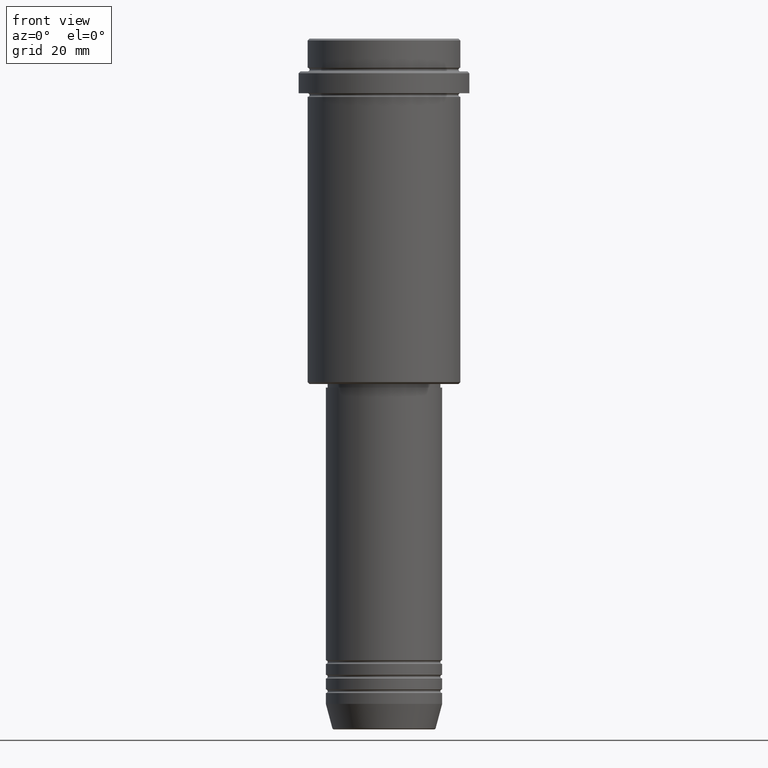
[diagram: clean part render]
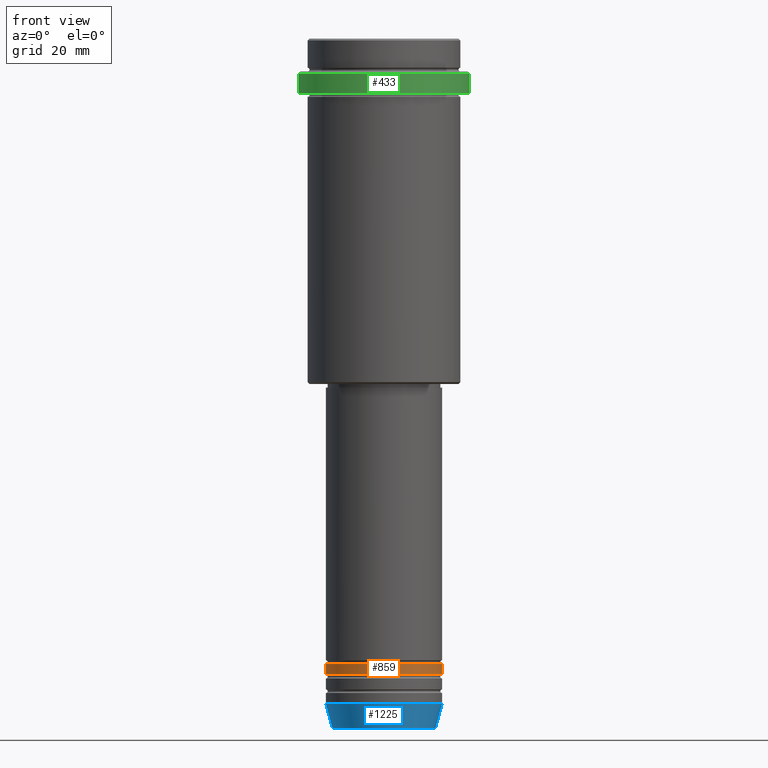
[diagram: same view with three faces highlighted in distinct colors, each labeled with its STEP entity id]
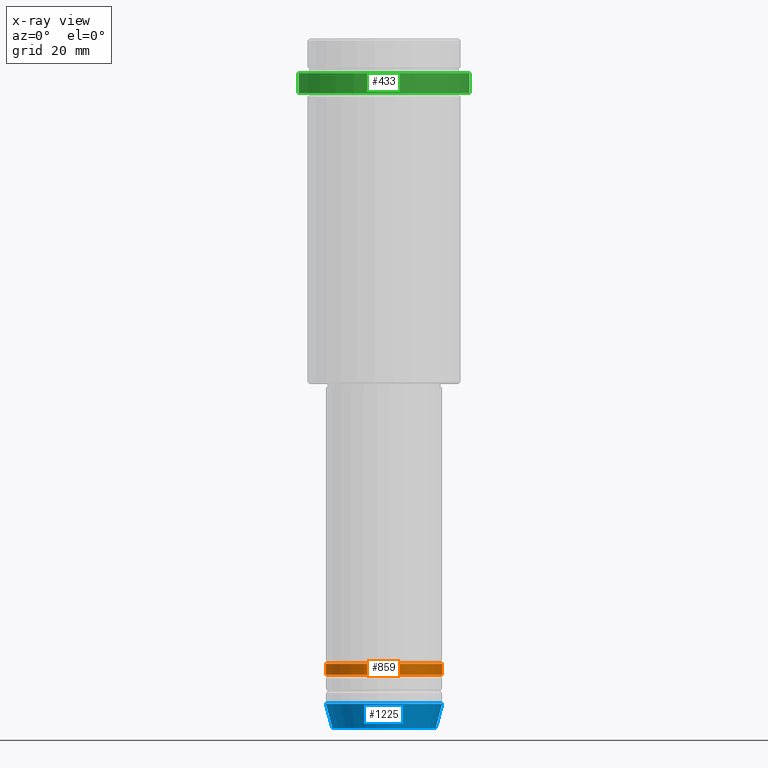
[diagram: x-ray of the same camera — body ghosted, the three highlighted faces saturated]
A machine part, front view with three faces highlighted in distinct colors.
The next image is the same camera in x-ray (body ghosted, the three faces saturated) — at least one of them is partly hidden behind the body in this view.
Their STEP definitions:

[orange] entity #859 — the highlighted cylindrical surface (partial cylindrical patch) has radius 16 mm, axis along (-0, -0, 1).
#38 = EDGE_CURVE ( 'NONE', #75, #716, #1025, .T. ) ;
#53 = DIRECTION ( 'NONE',  ( -0.000000000000000000, -0.000000000000000000, 1.000000000000000000 ) ) ;
#62 = DIRECTION ( 'NONE',  ( 1.000000000000000000, 0.000000000000000000, 0.000000000000000000 ) ) ;
#67 = DIRECTION ( 'NONE',  ( -0.000000000000000000, -0.000000000000000000, 1.000000000000000000 ) ) ;
#75 = VERTEX_POINT ( 'NONE', #531 ) ;
#109 = ORIENTED_EDGE ( 'NONE', *, *, #38, .T. ) ;
#180 = VECTOR ( 'NONE', #67, 1000.000000000000000 ) ;
#278 = LINE ( 'NONE', #1041, #180 ) ;
#305 = ORIENTED_EDGE ( 'NONE', *, *, #579, .F. ) ;
#312 = CARTESIAN_POINT ( 'NONE',  ( 0.000000000000000000, 0.000000000000000000, 0.000000000000000000 ) ) ;
#326 = DIRECTION ( 'NONE',  ( -0.000000000000000000, -0.000000000000000000, 1.000000000000000000 ) ) ;
#396 = ORIENTED_EDGE ( 'NONE', *, *, #1164, .F. ) ;
#430 = LINE ( 'NONE', #1302, #1004 ) ;
#490 = EDGE_CURVE ( 'NONE', #716, #1021, #430, .T. ) ;
#531 = CARTESIAN_POINT ( 'NONE',  ( -16.00000000000000000, 1.959434878635765131E-15, -174.9999999999998863 ) ) ;
#534 = CYLINDRICAL_SURFACE ( 'NONE', #1030, 16.00000000000000000 ) ;
#579 = EDGE_CURVE ( 'NONE', #691, #1021, #1079, .T. ) ;
#691 = VERTEX_POINT ( 'NONE', #1246 ) ;
#716 = VERTEX_POINT ( 'NONE', #1240 ) ;
#840 = ORIENTED_EDGE ( 'NONE', *, *, #490, .T. ) ;
#859 = ADVANCED_FACE ( 'NONE', ( #1373 ), #534, .T. ) ;
#862 = CARTESIAN_POINT ( 'NONE',  ( 0.000000000000000000, 0.000000000000000000, -171.9999999999998863 ) ) ;
#927 = EDGE_LOOP ( 'NONE', ( #396, #109, #840, #305 ) ) ;
#943 = DIRECTION ( 'NONE',  ( 1.000000000000000000, 0.000000000000000000, 0.000000000000000000 ) ) ;
#957 = DIRECTION ( 'NONE',  ( -0.000000000000000000, -0.000000000000000000, 1.000000000000000000 ) ) ;
#1004 = VECTOR ( 'NONE', #326, 1000.000000000000000 ) ;
#1021 = VERTEX_POINT ( 'NONE', #1218 ) ;
#1025 = CIRCLE ( 'NONE', #1117, 16.00000000000000000 ) ;
#1029 = AXIS2_PLACEMENT_3D ( 'NONE', #862, #1095, #1415 ) ;
#1030 = AXIS2_PLACEMENT_3D ( 'NONE', #312, #53, #62 ) ;
#1041 = CARTESIAN_POINT ( 'NONE',  ( -16.00000000000000000, 1.959434878635765131E-15, 0.000000000000000000 ) ) ;
#1079 = CIRCLE ( 'NONE', #1029, 16.00000000000000000 ) ;
#1095 = DIRECTION ( 'NONE',  ( -0.000000000000000000, -0.000000000000000000, 1.000000000000000000 ) ) ;
#1117 = AXIS2_PLACEMENT_3D ( 'NONE', #1162, #957, #943 ) ;
#1162 = CARTESIAN_POINT ( 'NONE',  ( 0.000000000000000000, 0.000000000000000000, -174.9999999999998863 ) ) ;
#1164 = EDGE_CURVE ( 'NONE', #75, #691, #278, .T. ) ;
#1218 = CARTESIAN_POINT ( 'NONE',  ( 16.00000000000000000, 0.000000000000000000, -171.9999999999998863 ) ) ;
#1240 = CARTESIAN_POINT ( 'NONE',  ( 16.00000000000000000, 0.000000000000000000, -174.9999999999998863 ) ) ;
#1246 = CARTESIAN_POINT ( 'NONE',  ( -16.00000000000000000, 1.959434878635765131E-15, -171.9999999999998863 ) ) ;
#1302 = CARTESIAN_POINT ( 'NONE',  ( 16.00000000000000000, 0.000000000000000000, 0.000000000000000000 ) ) ;
#1373 = FACE_OUTER_BOUND ( 'NONE', #927, .T. ) ;
#1415 = DIRECTION ( 'NONE',  ( 1.000000000000000000, 0.000000000000000000, 0.000000000000000000 ) ) ;

[blue] entity #1225 — the highlighted conical surface has half-angle 15 deg.
#66 = EDGE_CURVE ( 'NONE', #812, #405, #336, .T. ) ;
#93 = EDGE_CURVE ( 'NONE', #328, #405, #311, .T. ) ;
#113 = AXIS2_PLACEMENT_3D ( 'NONE', #809, #1243, #1359 ) ;
#191 = CARTESIAN_POINT ( 'NONE',  ( 0.000000000000000000, 0.000000000000000000, -189.6294095225512422 ) ) ;
#220 = DIRECTION ( 'NONE',  ( 0.2588190451025213501, 0.000000000000000000, 0.9659258262890680902 ) ) ;
#311 = LINE ( 'NONE', #770, #658 ) ;
#324 = DIRECTION ( 'NONE',  ( 1.000000000000000000, 0.000000000000000000, 0.000000000000000000 ) ) ;
#328 = VERTEX_POINT ( 'NONE', #649 ) ;
#336 = CIRCLE ( 'NONE', #774, 16.00000000000000000 ) ;
#403 = EDGE_CURVE ( 'NONE', #955, #328, #687, .T. ) ;
#405 = VERTEX_POINT ( 'NONE', #1188 ) ;
#427 = CARTESIAN_POINT ( 'NONE',  ( 0.000000000000000000, 0.000000000000000000, -183.0000000000000000 ) ) ;
#442 = LINE ( 'NONE', #878, #864 ) ;
#467 = EDGE_CURVE ( 'NONE', #955, #812, #442, .T. ) ;
#557 = DIRECTION ( 'NONE',  ( -0.2588190451025213501, 3.169619151431772337E-17, 0.9659258262890680902 ) ) ;
#618 = EDGE_LOOP ( 'NONE', ( #807, #872, #1324, #659 ) ) ;
#632 = DIRECTION ( 'NONE',  ( 1.000000000000000000, 0.000000000000000000, 0.000000000000000000 ) ) ;
#649 = CARTESIAN_POINT ( 'NONE',  ( 14.22365507213718772, 0.000000000000000000, -189.6294095225512422 ) ) ;
#658 = VECTOR ( 'NONE', #220, 1000.000000000000000 ) ;
#659 = ORIENTED_EDGE ( 'NONE', *, *, #66, .F. ) ;
#661 = DIRECTION ( 'NONE',  ( -0.000000000000000000, -0.000000000000000000, 1.000000000000000000 ) ) ;
#687 = CIRCLE ( 'NONE', #1272, 14.22365507213718772 ) ;
#751 = CARTESIAN_POINT ( 'NONE',  ( -16.00000000000000000, 1.959434878635765131E-15, -183.0000000000000000 ) ) ;
#770 = CARTESIAN_POINT ( 'NONE',  ( 16.00000000000000000, 0.000000000000000000, -183.0000000000000000 ) ) ;
#774 = AXIS2_PLACEMENT_3D ( 'NONE', #427, #661, #324 ) ;
#807 = ORIENTED_EDGE ( 'NONE', *, *, #467, .F. ) ;
#809 = CARTESIAN_POINT ( 'NONE',  ( 0.000000000000000000, 0.000000000000000000, -183.0000000000000000 ) ) ;
#812 = VERTEX_POINT ( 'NONE', #751 ) ;
#845 = DIRECTION ( 'NONE',  ( -0.000000000000000000, -0.000000000000000000, 1.000000000000000000 ) ) ;
#864 = VECTOR ( 'NONE', #557, 1000.000000000000000 ) ;
#872 = ORIENTED_EDGE ( 'NONE', *, *, #403, .T. ) ;
#878 = CARTESIAN_POINT ( 'NONE',  ( -16.00000000000000000, 1.959434878635765131E-15, -183.0000000000000000 ) ) ;
#955 = VERTEX_POINT ( 'NONE', #1003 ) ;
#1003 = CARTESIAN_POINT ( 'NONE',  ( -14.22365507213718772, 1.850665122131323337E-15, -189.6294095225512422 ) ) ;
#1188 = CARTESIAN_POINT ( 'NONE',  ( 16.00000000000000000, 0.000000000000000000, -183.0000000000000000 ) ) ;
#1194 = CONICAL_SURFACE ( 'NONE', #113, 16.00000000000000000, 0.2617993877991500740 ) ;
#1225 = ADVANCED_FACE ( 'NONE', ( #1346 ), #1194, .T. ) ;
#1243 = DIRECTION ( 'NONE',  ( -0.000000000000000000, -0.000000000000000000, 1.000000000000000000 ) ) ;
#1272 = AXIS2_PLACEMENT_3D ( 'NONE', #191, #845, #632 ) ;
#1324 = ORIENTED_EDGE ( 'NONE', *, *, #93, .T. ) ;
#1346 = FACE_OUTER_BOUND ( 'NONE', #618, .T. ) ;
#1359 = DIRECTION ( 'NONE',  ( 1.000000000000000000, 0.000000000000000000, 0.000000000000000000 ) ) ;

[green] entity #433 — the highlighted cylindrical surface (partial cylindrical patch) has radius 23.5 mm, axis along (-0, -0, 1).
#16 = AXIS2_PLACEMENT_3D ( 'NONE', #775, #1331, #881 ) ;
#18 = CIRCLE ( 'NONE', #65, 23.50000000000000000 ) ;
#65 = AXIS2_PLACEMENT_3D ( 'NONE', #1184, #81, #528 ) ;
#81 = DIRECTION ( 'NONE',  ( 0.000000000000000000, 0.000000000000000000, -1.000000000000000000 ) ) ;
#88 = DIRECTION ( 'NONE',  ( -0.000000000000000000, -0.000000000000000000, 1.000000000000000000 ) ) ;
#172 = DIRECTION ( 'NONE',  ( -0.000000000000000000, -0.000000000000000000, 1.000000000000000000 ) ) ;
#188 = ORIENTED_EDGE ( 'NONE', *, *, #488, .T. ) ;
#309 = FACE_OUTER_BOUND ( 'NONE', #956, .T. ) ;
#398 = LINE ( 'NONE', #1260, #1121 ) ;
#400 = CARTESIAN_POINT ( 'NONE',  ( 0.000000000000000000, 0.000000000000000000, 0.000000000000000000 ) ) ;
#433 = ADVANCED_FACE ( 'NONE', ( #309 ), #1183, .T. ) ;
#488 = EDGE_CURVE ( 'NONE', #1167, #762, #666, .T. ) ;
#528 = DIRECTION ( 'NONE',  ( 1.000000000000000000, 0.000000000000000000, 0.000000000000000000 ) ) ;
#629 = CARTESIAN_POINT ( 'NONE',  ( -23.50000000000000711, 2.877919977996281109E-15, -15.00000000000000000 ) ) ;
#666 = LINE ( 'NONE', #781, #1166 ) ;
#762 = VERTEX_POINT ( 'NONE', #1254 ) ;
#775 = CARTESIAN_POINT ( 'NONE',  ( 0.000000000000000000, 0.000000000000000000, -15.00000000000000000 ) ) ;
#781 = CARTESIAN_POINT ( 'NONE',  ( 23.50000000000000000, 0.000000000000000000, 0.000000000000000000 ) ) ;
#837 = DIRECTION ( 'NONE',  ( 1.000000000000000000, 0.000000000000000000, 0.000000000000000000 ) ) ;
#869 = DIRECTION ( 'NONE',  ( -0.000000000000000000, -0.000000000000000000, 1.000000000000000000 ) ) ;
#874 = EDGE_CURVE ( 'NONE', #909, #1115, #398, .T. ) ;
#881 = DIRECTION ( 'NONE',  ( 1.000000000000000000, 0.000000000000000000, 0.000000000000000000 ) ) ;
#909 = VERTEX_POINT ( 'NONE', #629 ) ;
#941 = CARTESIAN_POINT ( 'NONE',  ( -23.50000000000000000, 2.877919977996280320E-15, -9.500000000000000000 ) ) ;
#956 = EDGE_LOOP ( 'NONE', ( #1057, #1241, #188, #1039 ) ) ;
#1023 = EDGE_CURVE ( 'NONE', #909, #1167, #1101, .T. ) ;
#1039 = ORIENTED_EDGE ( 'NONE', *, *, #1291, .T. ) ;
#1057 = ORIENTED_EDGE ( 'NONE', *, *, #874, .F. ) ;
#1101 = CIRCLE ( 'NONE', #16, 23.50000000000000355 ) ;
#1115 = VERTEX_POINT ( 'NONE', #941 ) ;
#1121 = VECTOR ( 'NONE', #172, 1000.000000000000000 ) ;
#1133 = CARTESIAN_POINT ( 'NONE',  ( 23.50000000000000355, 0.000000000000000000, -15.00000000000000000 ) ) ;
#1166 = VECTOR ( 'NONE', #869, 1000.000000000000000 ) ;
#1167 = VERTEX_POINT ( 'NONE', #1133 ) ;
#1183 = CYLINDRICAL_SURFACE ( 'NONE', #1313, 23.50000000000000000 ) ;
#1184 = CARTESIAN_POINT ( 'NONE',  ( 0.000000000000000000, 0.000000000000000000, -9.500000000000000000 ) ) ;
#1241 = ORIENTED_EDGE ( 'NONE', *, *, #1023, .T. ) ;
#1254 = CARTESIAN_POINT ( 'NONE',  ( 23.50000000000000000, 0.000000000000000000, -9.500000000000000000 ) ) ;
#1260 = CARTESIAN_POINT ( 'NONE',  ( -23.50000000000000000, 2.877919977996280320E-15, 0.000000000000000000 ) ) ;
#1291 = EDGE_CURVE ( 'NONE', #762, #1115, #18, .T. ) ;
#1313 = AXIS2_PLACEMENT_3D ( 'NONE', #400, #88, #837 ) ;
#1331 = DIRECTION ( 'NONE',  ( -0.000000000000000000, -0.000000000000000000, 1.000000000000000000 ) ) ;